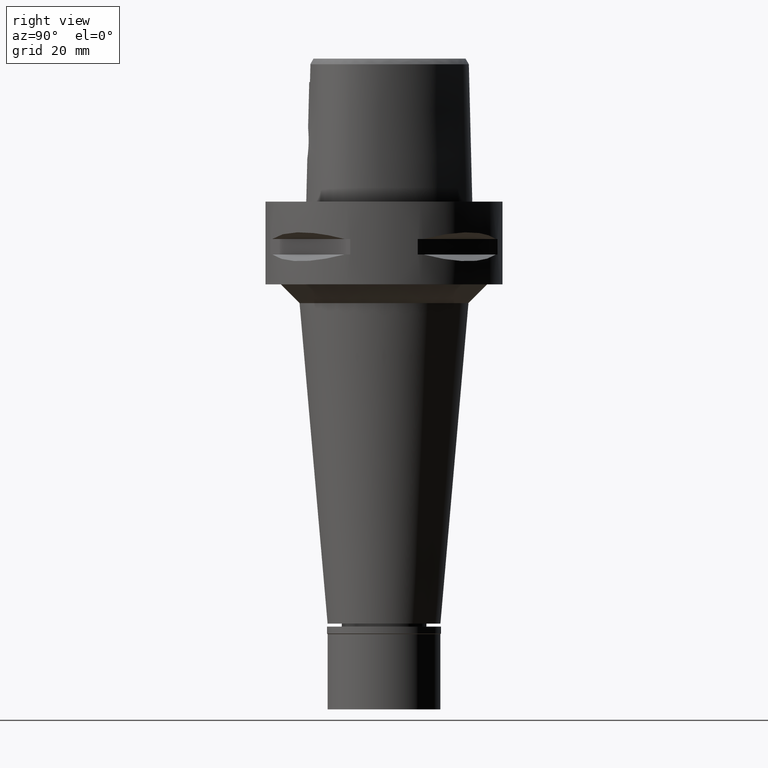
[diagram: clean part render]
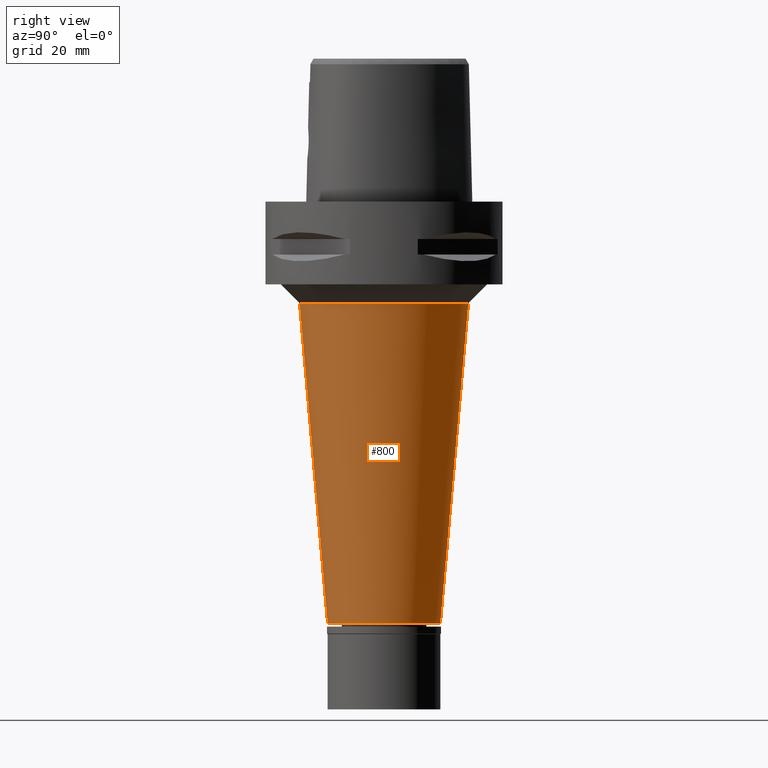
[diagram: same view with one face highlighted and labeled with its STEP entity id]
A machine part, right view. The second image highlights one B-rep face of the part: STEP entity #800.
In plain terms, the highlighted conical surface has half-angle 5 deg.
Its self-contained STEP definition (entity closure, byte-faithful):
#47 = EDGE_CURVE ( 'NONE', #1477, #2205, #4668, .T. ) ;
#226 = VERTEX_POINT ( 'NONE', #2093 ) ;
#258 = VERTEX_POINT ( 'NONE', #4355 ) ;
#401 = ORIENTED_EDGE ( 'NONE', *, *, #47, .T. ) ;
#800 = ADVANCED_FACE ( 'NONE', ( #1705 ), #1654, .T. ) ;
#883 = DIRECTION ( 'NONE',  ( 0.0000000000000000000, 1.000000000000000000, 0.0000000000000000000 ) ) ;
#960 = ORIENTED_EDGE ( 'NONE', *, *, #3621, .T. ) ;
#1100 = CARTESIAN_POINT ( 'NONE',  ( 0.0000000000000000000, -22.45403413240999768, -27.00000000000000000 ) ) ;
#1216 = CARTESIAN_POINT ( 'NONE',  ( 0.0000000000000000000, -22.45403413240999768, -27.00000000000000000 ) ) ;
#1435 = EDGE_CURVE ( 'NONE', #226, #258, #1907, .T. ) ;
#1477 = VERTEX_POINT ( 'NONE', #1100 ) ;
#1654 = CONICAL_SURFACE ( 'NONE', #3848, 18.72701706619999840, 0.08726646259969973729 ) ;
#1705 = FACE_OUTER_BOUND ( 'NONE', #2529, .T. ) ;
#1757 = DIRECTION ( 'NONE',  ( 0.0000000000000000000, -1.000000000000000000, 0.0000000000000000000 ) ) ;
#1851 = CARTESIAN_POINT ( 'NONE',  ( 0.0000000000000000000, 0.0000000000000000000, -27.00000000000000000 ) ) ;
#1907 = LINE ( 'NONE', #2636, #4345 ) ;
#1943 = DIRECTION ( 'NONE',  ( 0.0000000000000000000, 0.08715574274767391716, -0.9961946980917442129 ) ) ;
#2093 = CARTESIAN_POINT ( 'NONE',  ( 0.0000000000000000000, 22.45403413240999768, -27.00000000000000000 ) ) ;
#2142 = AXIS2_PLACEMENT_3D ( 'NONE', #1851, #2208, #1757 ) ;
#2205 = VERTEX_POINT ( 'NONE', #3633 ) ;
#2208 = DIRECTION ( 'NONE',  ( 0.0000000000000000000, 0.0000000000000000000, 1.000000000000000000 ) ) ;
#2302 = DIRECTION ( 'NONE',  ( 0.0000000000000000000, 0.0000000000000000000, 1.000000000000000000 ) ) ;
#2529 = EDGE_LOOP ( 'NONE', ( #3263, #401, #960, #2865 ) ) ;
#2636 = CARTESIAN_POINT ( 'NONE',  ( 0.0000000000000000000, 22.45403413240999768, -27.00000000000000000 ) ) ;
#2697 = VECTOR ( 'NONE', #1943, 1000.000000000000000 ) ;
#2865 = ORIENTED_EDGE ( 'NONE', *, *, #1435, .F. ) ;
#3263 = ORIENTED_EDGE ( 'NONE', *, *, #3270, .F. ) ;
#3270 = EDGE_CURVE ( 'NONE', #1477, #226, #4690, .T. ) ;
#3621 = EDGE_CURVE ( 'NONE', #2205, #258, #3912, .T. ) ;
#3633 = CARTESIAN_POINT ( 'NONE',  ( 0.0000000000000000000, -15.00000000000000000, -112.1999999999999886 ) ) ;
#3660 = CARTESIAN_POINT ( 'NONE',  ( 0.0000000000000000000, 0.0000000000000000000, -69.59999999999999432 ) ) ;
#3848 = AXIS2_PLACEMENT_3D ( 'NONE', #3660, #4051, #883 ) ;
#3867 = DIRECTION ( 'NONE',  ( 0.0000000000000000000, -1.000000000000000000, 0.0000000000000000000 ) ) ;
#3912 = CIRCLE ( 'NONE', #4404, 15.00000000000000000 ) ;
#4051 = DIRECTION ( 'NONE',  ( 0.0000000000000000000, 0.0000000000000000000, 1.000000000000000000 ) ) ;
#4206 = DIRECTION ( 'NONE',  ( 0.0000000000000000000, -0.08715574274767391716, -0.9961946980917442129 ) ) ;
#4246 = CARTESIAN_POINT ( 'NONE',  ( 0.0000000000000000000, 0.0000000000000000000, -112.1999999999999886 ) ) ;
#4345 = VECTOR ( 'NONE', #4206, 1000.000000000000000 ) ;
#4355 = CARTESIAN_POINT ( 'NONE',  ( 0.0000000000000000000, 15.00000000000000000, -112.1999999999999886 ) ) ;
#4404 = AXIS2_PLACEMENT_3D ( 'NONE', #4246, #2302, #3867 ) ;
#4668 = LINE ( 'NONE', #1216, #2697 ) ;
#4690 = CIRCLE ( 'NONE', #2142, 22.45403413239999679 ) ;